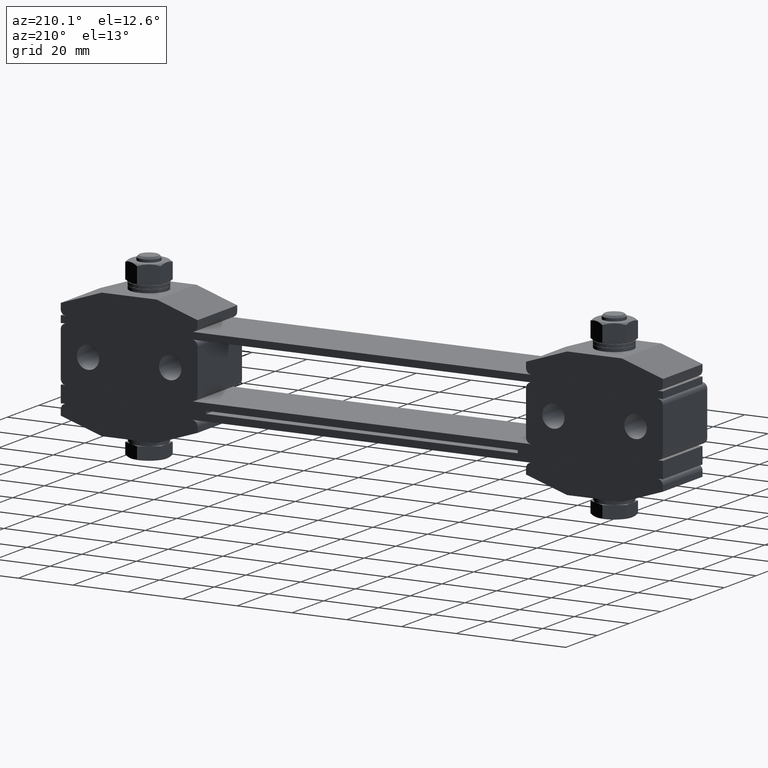
[diagram: clean part render]
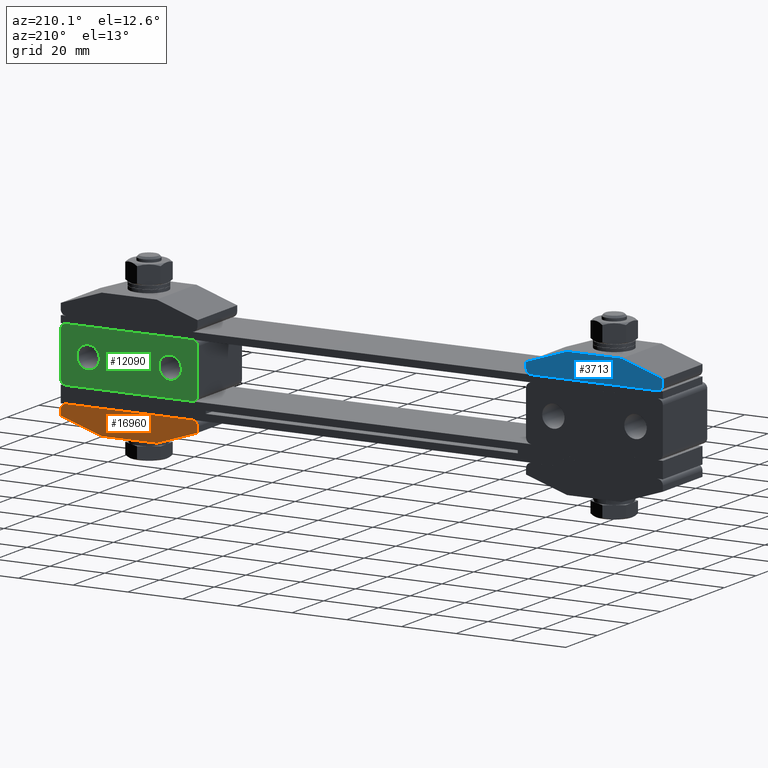
[diagram: same view with three faces highlighted in distinct colors, each labeled with its STEP entity id]
A machine part, auxiliary view with three faces highlighted in distinct colors.
Their STEP definitions:

[orange] entity #16960 — the highlighted planar face has unit normal (-0, -1, -0).
#480 = LINE ( 'NONE', #21084, #5277 ) ;
#711 = VECTOR ( 'NONE', #5777, 1000.000000000000000 ) ;
#898 = DIRECTION ( 'NONE',  ( -1.000000000000000000, -9.214851104388840300E-015, 0.0000000000000000000 ) ) ;
#1321 = ORIENTED_EDGE ( 'NONE', *, *, #13226, .F. ) ;
#1658 = DIRECTION ( 'NONE',  ( 0.0000000000000000000, 0.0000000000000000000, -1.000000000000000000 ) ) ;
#1773 = VERTEX_POINT ( 'NONE', #5353 ) ;
#1779 = CIRCLE ( 'NONE', #17017, 2.000000000000000000 ) ;
#2652 = ORIENTED_EDGE ( 'NONE', *, *, #17088, .T. ) ;
#2854 = ORIENTED_EDGE ( 'NONE', *, *, #3417, .T. ) ;
#3049 = AXIS2_PLACEMENT_3D ( 'NONE', #7790, #18031, #7859 ) ;
#3072 = DIRECTION ( 'NONE',  ( 9.214851104388829300E-015, 1.000000000000000000, -0.0000000000000000000 ) ) ;
#3417 = EDGE_CURVE ( 'NONE', #10366, #6560, #18930, .T. ) ;
#3452 = ORIENTED_EDGE ( 'NONE', *, *, #11492, .T. ) ;
#4625 = EDGE_LOOP ( 'NONE', ( #8980, #2854, #6717, #9544, #3452, #7032, #1321, #2652 ) ) ;
#4711 = EDGE_CURVE ( 'NONE', #18287, #13440, #13097, .T. ) ;
#5025 = CARTESIAN_POINT ( 'NONE',  ( 62.00000000000000000, 12.50000000000000000, -5.500000000000000000 ) ) ;
#5115 = CARTESIAN_POINT ( 'NONE',  ( 60.00000000000000000, 12.50000000000000000, -5.500000000000000000 ) ) ;
#5127 = CARTESIAN_POINT ( 'NONE',  ( 62.00000000000000000, 12.50000000000000000, -3.500000000000000000 ) ) ;
#5277 = VECTOR ( 'NONE', #21222, 999.9999999999998900 ) ;
#5353 = CARTESIAN_POINT ( 'NONE',  ( 60.00000000000000000, 12.50000000000000000, -7.500000000000000000 ) ) ;
#5777 = DIRECTION ( 'NONE',  ( -1.000000000000000000, -9.214851104388840300E-015, 0.0000000000000000000 ) ) ;
#5854 = CARTESIAN_POINT ( 'NONE',  ( 60.00000000000000000, 12.50000000000000000, -3.500000000000000000 ) ) ;
#6139 = LINE ( 'NONE', #8946, #10109 ) ;
#6560 = VERTEX_POINT ( 'NONE', #15382 ) ;
#6717 = ORIENTED_EDGE ( 'NONE', *, *, #14293, .T. ) ;
#7032 = ORIENTED_EDGE ( 'NONE', *, *, #11416, .T. ) ;
#7647 = CARTESIAN_POINT ( 'NONE',  ( 75.00000000000000000, 12.50000000000000000, -12.50000000000000000 ) ) ;
#7790 = CARTESIAN_POINT ( 'NONE',  ( 60.00000000000000000, 12.50000000000000000, -3.500000000000000000 ) ) ;
#7859 = DIRECTION ( 'NONE',  ( 0.0000000000000000000, 0.0000000000000000000, -1.000000000000000000 ) ) ;
#8718 = CARTESIAN_POINT ( 'NONE',  ( 108.0000000000000000, 12.50000000000036200, -3.500000000000000000 ) ) ;
#8782 = VECTOR ( 'NONE', #14037, 1000.000000000000000 ) ;
#8946 = CARTESIAN_POINT ( 'NONE',  ( 60.00000000000000000, 12.50000000000000000, -3.500000000000000000 ) ) ;
#8980 = ORIENTED_EDGE ( 'NONE', *, *, #11914, .F. ) ;
#9544 = ORIENTED_EDGE ( 'NONE', *, *, #4711, .T. ) ;
#10109 = VECTOR ( 'NONE', #13728, 1000.000000000000000 ) ;
#10142 = VECTOR ( 'NONE', #12530, 999.9999999999998900 ) ;
#10366 = VERTEX_POINT ( 'NONE', #8718 ) ;
#10929 = VERTEX_POINT ( 'NONE', #5115 ) ;
#11416 = EDGE_CURVE ( 'NONE', #18808, #1773, #480, .T. ) ;
#11492 = EDGE_CURVE ( 'NONE', #13440, #18808, #13256, .T. ) ;
#11914 = EDGE_CURVE ( 'NONE', #10366, #13109, #11928, .T. ) ;
#11928 = LINE ( 'NONE', #5854, #711 ) ;
#11950 = VECTOR ( 'NONE', #898, 1000.000000000000000 ) ;
#12530 = DIRECTION ( 'NONE',  ( -0.9486832980505137700, -8.741975336756017900E-015, -0.3162277660168380000 ) ) ;
#13097 = LINE ( 'NONE', #17798, #10142 ) ;
#13109 = VERTEX_POINT ( 'NONE', #5127 ) ;
#13226 = EDGE_CURVE ( 'NONE', #10929, #1773, #6139, .T. ) ;
#13256 = LINE ( 'NONE', #18166, #11950 ) ;
#13440 = VERTEX_POINT ( 'NONE', #19174 ) ;
#13728 = DIRECTION ( 'NONE',  ( 0.0000000000000000000, 0.0000000000000000000, -1.000000000000000000 ) ) ;
#14037 = DIRECTION ( 'NONE',  ( 0.0000000000000000000, 0.0000000000000000000, -1.000000000000000000 ) ) ;
#14293 = EDGE_CURVE ( 'NONE', #6560, #18287, #15710, .T. ) ;
#14904 = DIRECTION ( 'NONE',  ( 0.0000000000000000000, 0.0000000000000000000, -1.000000000000000000 ) ) ;
#15267 = DIRECTION ( 'NONE',  ( 9.214851104388829300E-015, 1.000000000000000000, -0.0000000000000000000 ) ) ;
#15382 = CARTESIAN_POINT ( 'NONE',  ( 110.0000000000000000, 12.50000000000040100, -5.500000000000000000 ) ) ;
#15710 = LINE ( 'NONE', #17324, #8782 ) ;
#16960 = ADVANCED_FACE ( 'NONE', ( #18835 ), #19546, .F. ) ;
#17017 = AXIS2_PLACEMENT_3D ( 'NONE', #5025, #15267, #1658 ) ;
#17088 = EDGE_CURVE ( 'NONE', #10929, #13109, #1779, .T. ) ;
#17324 = CARTESIAN_POINT ( 'NONE',  ( 110.0000000000000000, 12.50000000000040100, -3.500000000000000000 ) ) ;
#17798 = CARTESIAN_POINT ( 'NONE',  ( 66.19999999999998900, 12.50000000000000000, -22.10000000000000100 ) ) ;
#17930 = CARTESIAN_POINT ( 'NONE',  ( 110.0000000000000000, 12.50000000000040100, -7.500000000000000000 ) ) ;
#18031 = DIRECTION ( 'NONE',  ( -9.214851104388829300E-015, -1.000000000000000000, -0.0000000000000000000 ) ) ;
#18104 = CARTESIAN_POINT ( 'NONE',  ( 108.0000000000000000, 12.50000000000036200, -5.500000000000000000 ) ) ;
#18166 = CARTESIAN_POINT ( 'NONE',  ( 60.00000000000000000, 12.50000000000000000, -12.50000000000000000 ) ) ;
#18287 = VERTEX_POINT ( 'NONE', #17930 ) ;
#18808 = VERTEX_POINT ( 'NONE', #7647 ) ;
#18835 = FACE_OUTER_BOUND ( 'NONE', #4625, .T. ) ;
#18930 = CIRCLE ( 'NONE', #20918, 2.000000000000000000 ) ;
#19174 = CARTESIAN_POINT ( 'NONE',  ( 95.00000000000000000, 12.50000000000022000, -12.50000000000000000 ) ) ;
#19546 = PLANE ( 'NONE',  #3049 ) ;
#20918 = AXIS2_PLACEMENT_3D ( 'NONE', #18104, #3072, #14904 ) ;
#21084 = CARTESIAN_POINT ( 'NONE',  ( 58.79999999999999700, 12.50000000000000000, -7.100000000000000500 ) ) ;
#21222 = DIRECTION ( 'NONE',  ( -0.9486832980505137700, -8.741975336756017900E-015, 0.3162277660168380000 ) ) ;

[blue] entity #3713 — the highlighted planar face has unit normal (0, -1, 0).
#461 = CARTESIAN_POINT ( 'NONE',  ( -60.00000000000000000, 12.49999999999987900, 25.00000000000000000 ) ) ;
#1424 = DIRECTION ( 'NONE',  ( -9.436895709313870000E-015, 1.000000000000000000, -0.0000000000000000000 ) ) ;
#1453 = VERTEX_POINT ( 'NONE', #16415 ) ;
#1490 = DIRECTION ( 'NONE',  ( 0.0000000000000000000, 0.0000000000000000000, 1.000000000000000000 ) ) ;
#1662 = CARTESIAN_POINT ( 'NONE',  ( -110.0000000000000000, 12.50000000000036200, 25.00000000000000000 ) ) ;
#1679 = DIRECTION ( 'NONE',  ( 1.000000000000000000, -9.270362255620091800E-015, 0.0000000000000000000 ) ) ;
#1933 = VECTOR ( 'NONE', #1679, 1000.000000000000000 ) ;
#2092 = DIRECTION ( 'NONE',  ( 0.0000000000000000000, 0.0000000000000000000, 1.000000000000000000 ) ) ;
#2174 = CARTESIAN_POINT ( 'NONE',  ( -58.79999999999999700, 12.49999999999987900, 28.60000000000000100 ) ) ;
#2706 = LINE ( 'NONE', #1662, #3257 ) ;
#3257 = VECTOR ( 'NONE', #10222, 1000.000000000000000 ) ;
#3580 = VERTEX_POINT ( 'NONE', #7674 ) ;
#3713 = ADVANCED_FACE ( 'NONE', ( #13063 ), #18296, .F. ) ;
#4528 = EDGE_CURVE ( 'NONE', #15658, #1453, #12527, .T. ) ;
#4557 = DIRECTION ( 'NONE',  ( 0.0000000000000000000, 0.0000000000000000000, 1.000000000000000000 ) ) ;
#4935 = EDGE_CURVE ( 'NONE', #18905, #17115, #19745, .T. ) ;
#6314 = VERTEX_POINT ( 'NONE', #9969 ) ;
#6627 = CARTESIAN_POINT ( 'NONE',  ( -60.00000000000000000, 12.49999999999987900, 27.00000000000000000 ) ) ;
#6706 = ORIENTED_EDGE ( 'NONE', *, *, #7737, .F. ) ;
#7042 = DIRECTION ( 'NONE',  ( 0.0000000000000000000, 0.0000000000000000000, 1.000000000000000000 ) ) ;
#7586 = ORIENTED_EDGE ( 'NONE', *, *, #10653, .T. ) ;
#7674 = CARTESIAN_POINT ( 'NONE',  ( -62.00000000000000000, 12.50000000000000000, 25.00000000000000000 ) ) ;
#7737 = EDGE_CURVE ( 'NONE', #18905, #3580, #11005, .T. ) ;
#8024 = CARTESIAN_POINT ( 'NONE',  ( -108.0000000000000000, 12.50000000000034100, 25.00000000000000000 ) ) ;
#8116 = CARTESIAN_POINT ( 'NONE',  ( -60.00000000000000000, 12.49999999999987900, 25.00000000000000000 ) ) ;
#8305 = CARTESIAN_POINT ( 'NONE',  ( -60.00000000000000000, 12.49999999999987900, 34.00000000000000000 ) ) ;
#8419 = CARTESIAN_POINT ( 'NONE',  ( -62.00000000000000000, 12.50000000000000000, 27.00000000000000000 ) ) ;
#8600 = EDGE_CURVE ( 'NONE', #6314, #19882, #21612, .T. ) ;
#8820 = ORIENTED_EDGE ( 'NONE', *, *, #12416, .T. ) ;
#9074 = DIRECTION ( 'NONE',  ( 0.9486832980505137700, -8.794637838784670700E-015, -0.3162277660168380000 ) ) ;
#9287 = ORIENTED_EDGE ( 'NONE', *, *, #12246, .T. ) ;
#9969 = CARTESIAN_POINT ( 'NONE',  ( -95.00000000000000000, 12.50000000000020100, 34.00000000000000000 ) ) ;
#10153 = CIRCLE ( 'NONE', #10650, 1.999999999999998200 ) ;
#10222 = DIRECTION ( 'NONE',  ( 0.0000000000000000000, 0.0000000000000000000, 1.000000000000000000 ) ) ;
#10406 = LINE ( 'NONE', #14720, #11477 ) ;
#10650 = AXIS2_PLACEMENT_3D ( 'NONE', #8419, #1424, #1490 ) ;
#10653 = EDGE_CURVE ( 'NONE', #15658, #3580, #10153, .T. ) ;
#10945 = ORIENTED_EDGE ( 'NONE', *, *, #4935, .T. ) ;
#11005 = LINE ( 'NONE', #20511, #1933 ) ;
#11453 = ORIENTED_EDGE ( 'NONE', *, *, #20847, .T. ) ;
#11477 = VECTOR ( 'NONE', #16331, 999.9999999999998900 ) ;
#11648 = DIRECTION ( 'NONE',  ( -9.436895709313870000E-015, 1.000000000000000000, -0.0000000000000000000 ) ) ;
#12016 = VECTOR ( 'NONE', #15144, 1000.000000000000000 ) ;
#12246 = EDGE_CURVE ( 'NONE', #17115, #15842, #2706, .T. ) ;
#12391 = EDGE_LOOP ( 'NONE', ( #6706, #10945, #9287, #11453, #12415, #8820, #21928, #7586 ) ) ;
#12415 = ORIENTED_EDGE ( 'NONE', *, *, #8600, .T. ) ;
#12416 = EDGE_CURVE ( 'NONE', #19882, #1453, #13888, .T. ) ;
#12527 = LINE ( 'NONE', #461, #14670 ) ;
#12809 = CARTESIAN_POINT ( 'NONE',  ( -75.00000000000000000, 12.50000000000000000, 34.00000000000000000 ) ) ;
#13063 = FACE_OUTER_BOUND ( 'NONE', #12391, .T. ) ;
#13801 = AXIS2_PLACEMENT_3D ( 'NONE', #8116, #16414, #4557 ) ;
#13888 = LINE ( 'NONE', #2174, #19509 ) ;
#14670 = VECTOR ( 'NONE', #7042, 1000.000000000000000 ) ;
#14720 = CARTESIAN_POINT ( 'NONE',  ( -66.19999999999998900, 12.50000000000000000, 43.60000000000000100 ) ) ;
#15144 = DIRECTION ( 'NONE',  ( 1.000000000000000000, -9.270362255620091800E-015, 0.0000000000000000000 ) ) ;
#15658 = VERTEX_POINT ( 'NONE', #6627 ) ;
#15842 = VERTEX_POINT ( 'NONE', #17649 ) ;
#16331 = DIRECTION ( 'NONE',  ( 0.9486832980505137700, -8.794637838784670700E-015, 0.3162277660168380000 ) ) ;
#16414 = DIRECTION ( 'NONE',  ( 9.436895709313870000E-015, -1.000000000000000000, 0.0000000000000000000 ) ) ;
#16415 = CARTESIAN_POINT ( 'NONE',  ( -60.00000000000000000, 12.49999999999987900, 29.00000000000000000 ) ) ;
#17115 = VERTEX_POINT ( 'NONE', #18633 ) ;
#17649 = CARTESIAN_POINT ( 'NONE',  ( -110.0000000000000000, 12.50000000000036200, 29.00000000000000000 ) ) ;
#18246 = AXIS2_PLACEMENT_3D ( 'NONE', #21831, #11648, #2092 ) ;
#18296 = PLANE ( 'NONE',  #13801 ) ;
#18633 = CARTESIAN_POINT ( 'NONE',  ( -110.0000000000000000, 12.50000000000036200, 27.00000000000000000 ) ) ;
#18905 = VERTEX_POINT ( 'NONE', #8024 ) ;
#19509 = VECTOR ( 'NONE', #9074, 999.9999999999998900 ) ;
#19745 = CIRCLE ( 'NONE', #18246, 1.999999999999998200 ) ;
#19882 = VERTEX_POINT ( 'NONE', #12809 ) ;
#20511 = CARTESIAN_POINT ( 'NONE',  ( -60.00000000000000000, 12.49999999999987900, 25.00000000000000000 ) ) ;
#20847 = EDGE_CURVE ( 'NONE', #15842, #6314, #10406, .T. ) ;
#21612 = LINE ( 'NONE', #8305, #12016 ) ;
#21831 = CARTESIAN_POINT ( 'NONE',  ( -108.0000000000000000, 12.50000000000034100, 27.00000000000000000 ) ) ;
#21928 = ORIENTED_EDGE ( 'NONE', *, *, #4528, .F. ) ;

[green] entity #12090 — the highlighted planar face has unit normal (-0, -1, -0).
#6 = CARTESIAN_POINT ( 'NONE',  ( 60.00000000000000000, 12.50000000000000000, 22.50000000000000000 ) ) ;
#224 = VERTEX_POINT ( 'NONE', #1793 ) ;
#422 = DIRECTION ( 'NONE',  ( 0.0000000000000000000, 0.0000000000000000000, 1.000000000000000000 ) ) ;
#455 = LINE ( 'NONE', #6, #21515 ) ;
#676 = CARTESIAN_POINT ( 'NONE',  ( 100.0000000000000000, 12.50000000000000000, 12.50000000000000000 ) ) ;
#1022 = EDGE_CURVE ( 'NONE', #7754, #20658, #3142, .T. ) ;
#1041 = CARTESIAN_POINT ( 'NONE',  ( 110.0000000000000000, 12.50000000000000000, 20.50000000000000000 ) ) ;
#1057 = EDGE_CURVE ( 'NONE', #14061, #6008, #455, .T. ) ;
#1096 = CARTESIAN_POINT ( 'NONE',  ( 108.0000000000000000, 12.50000000000000000, 2.500000000000000000 ) ) ;
#1354 = CIRCLE ( 'NONE', #18682, 2.000000000000000000 ) ;
#1376 = CARTESIAN_POINT ( 'NONE',  ( 99.99999999999995700, 12.50000000000000000, 8.400000000000000400 ) ) ;
#1389 = AXIS2_PLACEMENT_3D ( 'NONE', #676, #5990, #14295 ) ;
#1793 = CARTESIAN_POINT ( 'NONE',  ( 60.00000000000000000, 12.50000000000000000, 4.500000000000000000 ) ) ;
#1975 = AXIS2_PLACEMENT_3D ( 'NONE', #18421, #21848, #3314 ) ;
#2367 = CIRCLE ( 'NONE', #5017, 1.999999999999998200 ) ;
#2382 = ORIENTED_EDGE ( 'NONE', *, *, #11771, .F. ) ;
#2440 = VERTEX_POINT ( 'NONE', #21231 ) ;
#3142 = CIRCLE ( 'NONE', #20109, 4.099999999999999600 ) ;
#3244 = ORIENTED_EDGE ( 'NONE', *, *, #10459, .F. ) ;
#3314 = DIRECTION ( 'NONE',  ( 0.0000000000000000000, 0.0000000000000000000, -1.000000000000000000 ) ) ;
#3359 = EDGE_CURVE ( 'NONE', #14061, #19335, #14977, .T. ) ;
#3456 = CARTESIAN_POINT ( 'NONE',  ( 62.00000000000000000, 12.50000000000000000, 4.500000000000000000 ) ) ;
#3536 = VERTEX_POINT ( 'NONE', #1376 ) ;
#4206 = DIRECTION ( 'NONE',  ( 2.886579864025405000E-015, 1.000000000000000000, -0.0000000000000000000 ) ) ;
#4382 = VERTEX_POINT ( 'NONE', #13280 ) ;
#4430 = EDGE_CURVE ( 'NONE', #4382, #9489, #1354, .T. ) ;
#4718 = CARTESIAN_POINT ( 'NONE',  ( 62.00000000000000000, 12.50000000000000000, 20.50000000000000000 ) ) ;
#5017 = AXIS2_PLACEMENT_3D ( 'NONE', #4718, #21748, #19516 ) ;
#5956 = CARTESIAN_POINT ( 'NONE',  ( 69.99999999999997200, 12.50000000000000000, 8.400000000000000400 ) ) ;
#5990 = DIRECTION ( 'NONE',  ( 2.886579864025405000E-015, 1.000000000000000000, 0.0000000000000000000 ) ) ;
#6008 = VERTEX_POINT ( 'NONE', #20776 ) ;
#6437 = CARTESIAN_POINT ( 'NONE',  ( 108.0000000000000000, 12.50000000000000000, 22.50000000000000000 ) ) ;
#6578 = AXIS2_PLACEMENT_3D ( 'NONE', #17240, #13751, #18985 ) ;
#6696 = DIRECTION ( 'NONE',  ( 2.886579864025405000E-015, 1.000000000000000000, -0.0000000000000000000 ) ) ;
#6776 = CARTESIAN_POINT ( 'NONE',  ( 70.00000000000000000, 12.50000000000000000, 16.60000000000000100 ) ) ;
#7151 = DIRECTION ( 'NONE',  ( 2.886579864025405000E-015, 1.000000000000000000, 0.0000000000000000000 ) ) ;
#7235 = ORIENTED_EDGE ( 'NONE', *, *, #4430, .T. ) ;
#7754 = VERTEX_POINT ( 'NONE', #6776 ) ;
#7783 = ORIENTED_EDGE ( 'NONE', *, *, #14002, .T. ) ;
#7997 = AXIS2_PLACEMENT_3D ( 'NONE', #3456, #20363, #10157 ) ;
#8282 = EDGE_CURVE ( 'NONE', #19335, #4382, #21346, .T. ) ;
#8362 = ORIENTED_EDGE ( 'NONE', *, *, #12614, .F. ) ;
#8396 = CARTESIAN_POINT ( 'NONE',  ( 62.00000000000000000, 12.50000000000000000, 2.500000000000000000 ) ) ;
#8503 = DIRECTION ( 'NONE',  ( 0.0000000000000000000, 0.0000000000000000000, -1.000000000000000000 ) ) ;
#8634 = CARTESIAN_POINT ( 'NONE',  ( 110.0000000000000000, 12.50000000000000000, 22.50000000000000000 ) ) ;
#9489 = VERTEX_POINT ( 'NONE', #1096 ) ;
#9667 = VERTEX_POINT ( 'NONE', #20744 ) ;
#10157 = DIRECTION ( 'NONE',  ( 0.0000000000000000000, 0.0000000000000000000, -1.000000000000000000 ) ) ;
#10257 = CARTESIAN_POINT ( 'NONE',  ( 70.00000000000000000, 12.50000000000000000, 12.50000000000000000 ) ) ;
#10301 = ORIENTED_EDGE ( 'NONE', *, *, #18695, .F. ) ;
#10459 = EDGE_CURVE ( 'NONE', #3536, #2440, #13371, .T. ) ;
#10651 = CARTESIAN_POINT ( 'NONE',  ( 60.00000000000000000, 12.50000000000000000, 2.500000000000000000 ) ) ;
#10935 = AXIS2_PLACEMENT_3D ( 'NONE', #16153, #4206, #19612 ) ;
#11629 = VERTEX_POINT ( 'NONE', #8396 ) ;
#11771 = EDGE_CURVE ( 'NONE', #9667, #224, #15646, .T. ) ;
#11832 = EDGE_LOOP ( 'NONE', ( #20913, #7235, #7783, #19888, #2382, #15588, #13094, #16119 ) ) ;
#11876 = CIRCLE ( 'NONE', #18636, 4.099999999999999600 ) ;
#11935 = DIRECTION ( 'NONE',  ( -1.000000000000000000, -2.886579864025405000E-015, 0.0000000000000000000 ) ) ;
#12027 = DIRECTION ( 'NONE',  ( 0.0000000000000000000, 0.0000000000000000000, -1.000000000000000000 ) ) ;
#12090 = ADVANCED_FACE ( 'NONE', ( #20806, #18945, #20025 ), #21772, .F. ) ;
#12218 = EDGE_CURVE ( 'NONE', #11629, #224, #21905, .T. ) ;
#12511 = LINE ( 'NONE', #10651, #14388 ) ;
#12519 = EDGE_LOOP ( 'NONE', ( #17699, #10301 ) ) ;
#12614 = EDGE_CURVE ( 'NONE', #2440, #3536, #19489, .T. ) ;
#13094 = ORIENTED_EDGE ( 'NONE', *, *, #1057, .F. ) ;
#13280 = CARTESIAN_POINT ( 'NONE',  ( 110.0000000000000000, 12.50000000000000000, 4.500000000000000000 ) ) ;
#13371 = CIRCLE ( 'NONE', #1389, 4.099999999999999600 ) ;
#13751 = DIRECTION ( 'NONE',  ( 2.886579864025405000E-015, 1.000000000000000000, 0.0000000000000000000 ) ) ;
#14002 = EDGE_CURVE ( 'NONE', #9489, #11629, #12511, .T. ) ;
#14061 = VERTEX_POINT ( 'NONE', #6437 ) ;
#14130 = VECTOR ( 'NONE', #8503, 1000.000000000000000 ) ;
#14295 = DIRECTION ( 'NONE',  ( 0.0000000000000000000, 0.0000000000000000000, 1.000000000000000000 ) ) ;
#14388 = VECTOR ( 'NONE', #15918, 1000.000000000000000 ) ;
#14977 = CIRCLE ( 'NONE', #10935, 1.999999999999998200 ) ;
#15588 = ORIENTED_EDGE ( 'NONE', *, *, #21778, .T. ) ;
#15646 = LINE ( 'NONE', #15816, #19664 ) ;
#15816 = CARTESIAN_POINT ( 'NONE',  ( 60.00000000000000000, 12.50000000000000000, 22.50000000000000000 ) ) ;
#15918 = DIRECTION ( 'NONE',  ( -1.000000000000000000, -2.886579864025405000E-015, 0.0000000000000000000 ) ) ;
#16119 = ORIENTED_EDGE ( 'NONE', *, *, #3359, .T. ) ;
#16153 = CARTESIAN_POINT ( 'NONE',  ( 108.0000000000000000, 12.50000000000000000, 20.50000000000000000 ) ) ;
#16845 = CARTESIAN_POINT ( 'NONE',  ( 108.0000000000000000, 12.50000000000000000, 4.500000000000000000 ) ) ;
#17240 = CARTESIAN_POINT ( 'NONE',  ( 100.0000000000000000, 12.50000000000000000, 12.50000000000000000 ) ) ;
#17380 = DIRECTION ( 'NONE',  ( 0.0000000000000000000, 0.0000000000000000000, -1.000000000000000000 ) ) ;
#17699 = ORIENTED_EDGE ( 'NONE', *, *, #1022, .F. ) ;
#18421 = CARTESIAN_POINT ( 'NONE',  ( 60.00000000000000000, 12.50000000000000000, 22.50000000000000000 ) ) ;
#18636 = AXIS2_PLACEMENT_3D ( 'NONE', #20962, #20823, #19118 ) ;
#18682 = AXIS2_PLACEMENT_3D ( 'NONE', #16845, #6696, #12027 ) ;
#18684 = EDGE_LOOP ( 'NONE', ( #8362, #3244 ) ) ;
#18695 = EDGE_CURVE ( 'NONE', #20658, #7754, #11876, .T. ) ;
#18945 = FACE_BOUND ( 'NONE', #18684, .T. ) ;
#18985 = DIRECTION ( 'NONE',  ( 0.0000000000000000000, 0.0000000000000000000, 1.000000000000000000 ) ) ;
#19118 = DIRECTION ( 'NONE',  ( 0.0000000000000000000, 0.0000000000000000000, 1.000000000000000000 ) ) ;
#19335 = VERTEX_POINT ( 'NONE', #1041 ) ;
#19489 = CIRCLE ( 'NONE', #6578, 4.099999999999999600 ) ;
#19516 = DIRECTION ( 'NONE',  ( 0.0000000000000000000, 0.0000000000000000000, -1.000000000000000000 ) ) ;
#19612 = DIRECTION ( 'NONE',  ( 0.0000000000000000000, 0.0000000000000000000, -1.000000000000000000 ) ) ;
#19664 = VECTOR ( 'NONE', #17380, 1000.000000000000000 ) ;
#19888 = ORIENTED_EDGE ( 'NONE', *, *, #12218, .T. ) ;
#20025 = FACE_OUTER_BOUND ( 'NONE', #11832, .T. ) ;
#20109 = AXIS2_PLACEMENT_3D ( 'NONE', #10257, #7151, #422 ) ;
#20363 = DIRECTION ( 'NONE',  ( 2.886579864025405000E-015, 1.000000000000000000, -0.0000000000000000000 ) ) ;
#20658 = VERTEX_POINT ( 'NONE', #5956 ) ;
#20744 = CARTESIAN_POINT ( 'NONE',  ( 60.00000000000000000, 12.50000000000000000, 20.50000000000000000 ) ) ;
#20776 = CARTESIAN_POINT ( 'NONE',  ( 62.00000000000000000, 12.50000000000000000, 22.50000000000000000 ) ) ;
#20806 = FACE_BOUND ( 'NONE', #12519, .T. ) ;
#20823 = DIRECTION ( 'NONE',  ( 2.886579864025405000E-015, 1.000000000000000000, 0.0000000000000000000 ) ) ;
#20913 = ORIENTED_EDGE ( 'NONE', *, *, #8282, .T. ) ;
#20962 = CARTESIAN_POINT ( 'NONE',  ( 70.00000000000000000, 12.50000000000000000, 12.50000000000000000 ) ) ;
#21231 = CARTESIAN_POINT ( 'NONE',  ( 100.0000000000000000, 12.50000000000000000, 16.60000000000000100 ) ) ;
#21346 = LINE ( 'NONE', #8634, #14130 ) ;
#21515 = VECTOR ( 'NONE', #11935, 1000.000000000000000 ) ;
#21748 = DIRECTION ( 'NONE',  ( 2.886579864025405000E-015, 1.000000000000000000, -0.0000000000000000000 ) ) ;
#21772 = PLANE ( 'NONE',  #1975 ) ;
#21778 = EDGE_CURVE ( 'NONE', #9667, #6008, #2367, .T. ) ;
#21848 = DIRECTION ( 'NONE',  ( -2.886579864025405000E-015, -1.000000000000000000, -0.0000000000000000000 ) ) ;
#21905 = CIRCLE ( 'NONE', #7997, 2.000000000000000000 ) ;